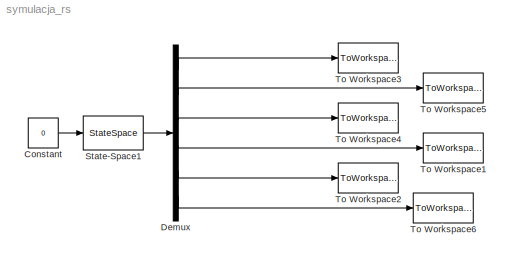
MODEL symulacja_rs
KIND model
BLOCK [Constant] Constant
  SID = 139
  Value = 0
BLOCK [Demux] Demux
  DisplayOption = bar
  Outputs = 6
  Ports = [1, 6]
  SID = 138
BLOCK [StateSpace] State-Space1
  A = A
  B = B
  C = C
  D = D
  Ports = [1, 1]
  SID = 135
  X0 = init
BLOCK [ToWorkspace] To Workspace1
  FixptAsFi = on
  MaxDataPoints = inf
  Ports = [1]
  SID = 153
  SampleTime = -1
  VariableName = Tr1
BLOCK [ToWorkspace] To Workspace2
  FixptAsFi = on
  MaxDataPoints = inf
  Ports = [1]
  SID = 154
  SampleTime = -1
  VariableName = Tpco2
BLOCK [ToWorkspace] To Workspace3
  FixptAsFi = on
  MaxDataPoints = inf
  Ports = [1]
  SID = 151
  SampleTime = -1
  VariableName = Tpm
BLOCK [ToWorkspace] To Workspace4
  FixptAsFi = on
  MaxDataPoints = inf
  Ports = [1]
  SID = 144
  SampleTime = -1
  VariableName = Tpco1
BLOCK [ToWorkspace] To Workspace5
  FixptAsFi = on
  MaxDataPoints = inf
  Ports = [1]
  SID = 152
  SampleTime = -1
  VariableName = Tzco
BLOCK [ToWorkspace] To Workspace6
  FixptAsFi = on
  MaxDataPoints = inf
  Ports = [1]
  SID = 155
  SampleTime = -1
  VariableName = Tr2
LINE Constant:1 -> State-Space1:1
LINE Demux:1 -> To Workspace3:1
LINE Demux:2 -> To Workspace5:1
LINE Demux:3 -> To Workspace4:1
LINE Demux:4 -> To Workspace1:1
LINE Demux:5 -> To Workspace2:1
LINE Demux:6 -> To Workspace6:1
LINE State-Space1:1 -> Demux:1
